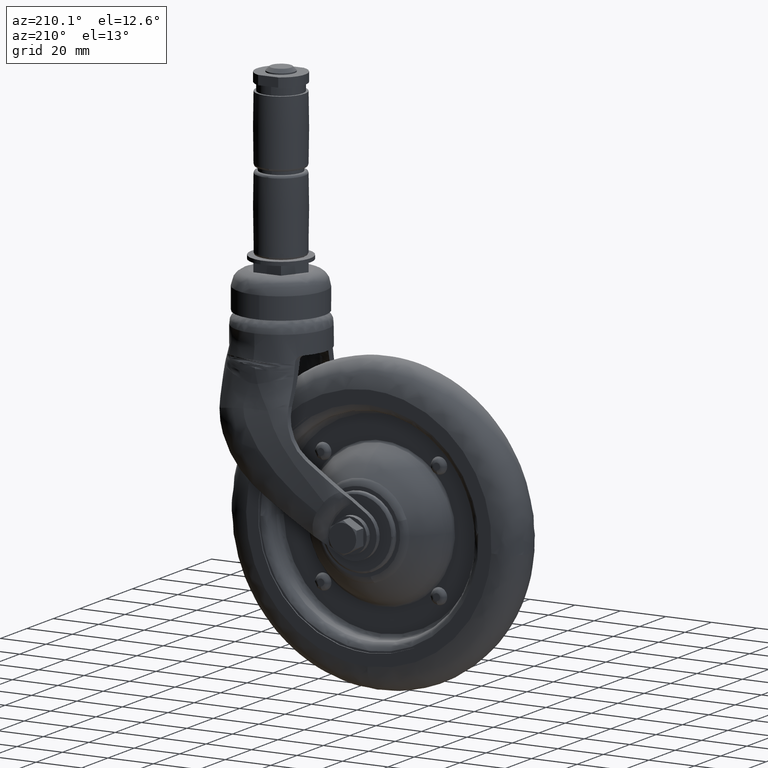
[diagram: clean part render]
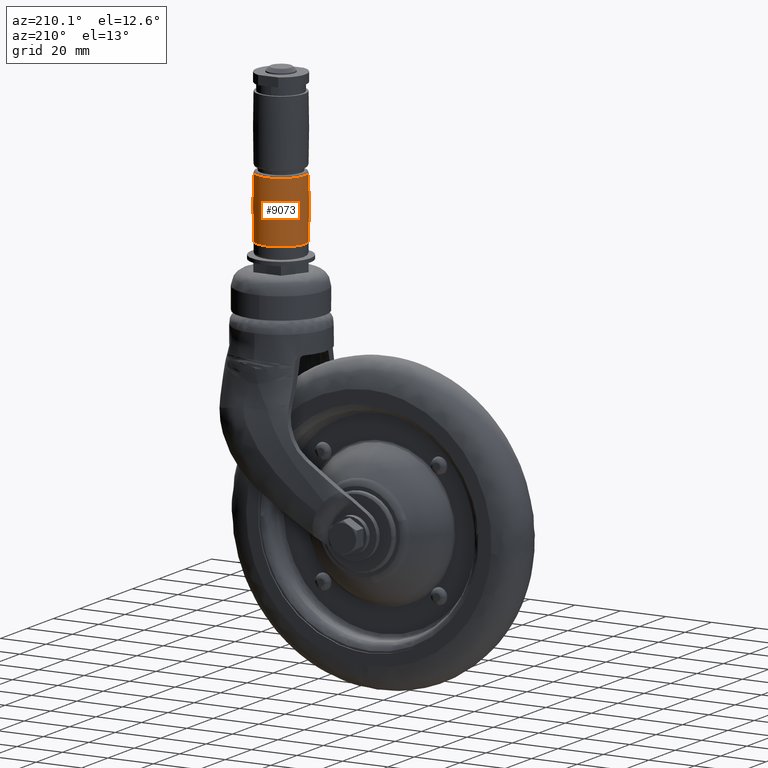
[diagram: same view with one face highlighted and labeled with its STEP entity id]
A machine part, auxiliary view. The second image highlights one B-rep face of the part: STEP entity #9073.
In plain terms, the highlighted face is a freeform B-spline surface patch.
Its self-contained STEP definition (entity closure, byte-faithful):
#7530=CARTESIAN_POINT('',(51.857936173965967,7.950991900244896,104.899996537919190));
#7531=VERTEX_POINT('',#7530);
#7537=CARTESIAN_POINT('',(55.499979311117123,0.0,104.899995811467700));
#7538=VERTEX_POINT('',#7537);
#7539=CARTESIAN_POINT('',(51.857936173965967,7.950991900244896,104.899996537919150));
#7540=CARTESIAN_POINT('',(55.499979311117109,4.809635764768170,104.899995811467680));
#7541=CARTESIAN_POINT('',(55.499979311117123,0.0,104.899995811467700));
#7549=(BOUNDED_CURVE()B_SPLINE_CURVE(2,(#7539,#7540,#7541),.UNSPECIFIED.,.F.,.U.)B_SPLINE_CURVE_WITH_KNOTS((3,3),(0.363877966792418,0.500000000000000),.UNSPECIFIED.)CURVE()GEOMETRIC_REPRESENTATION_ITEM()RATIONAL_B_SPLINE_CURVE((0.854712775574074,0.840523118169598,1.0))REPRESENTATION_ITEM(''));
#7550=EDGE_CURVE('',#7531,#7538,#7549,.T.);
#7552=CARTESIAN_POINT('',(46.212372041073053,-10.429751843484301,104.899999977481200));
#7553=VERTEX_POINT('',#7552);
#7567=CARTESIAN_POINT('',(38.608017779396718,-8.330193412636493,104.900000000000010));
#7568=VERTEX_POINT('',#7567);
#7569=CARTESIAN_POINT('',(46.212372041073053,-10.429751843484297,104.899999977481200));
#7570=CARTESIAN_POINT('',(45.608219989341102,-10.499979000000000,104.900000000000010));
#7571=CARTESIAN_POINT('',(45.0,-10.499979000000000,104.900000000000010));
#7572=CARTESIAN_POINT('',(41.435737410471589,-10.499979000000000,104.899999999999980));
#7573=CARTESIAN_POINT('',(38.608017779396725,-8.330193412636493,104.899999999999980));
#7581=(BOUNDED_CURVE()B_SPLINE_CURVE(2,(#7569,#7570,#7571,#7572,#7573),.UNSPECIFIED.,.F.,.U.)B_SPLINE_CURVE_WITH_KNOTS((3,2,3),(0.729999999991786,0.750000000000000,0.855220510393382),.UNSPECIFIED.)CURVE()GEOMETRIC_REPRESENTATION_ITEM()RATIONAL_B_SPLINE_CURVE((0.956886118174492,0.976568542485300,1.0,0.876726504102753,0.857220209455783))REPRESENTATION_ITEM(''));
#7582=EDGE_CURVE('',#7553,#7568,#7581,.T.);
#7678=CARTESIAN_POINT('',(34.500020999999997,0.0,104.900000000000010));
#7679=VERTEX_POINT('',#7678);
#7680=CARTESIAN_POINT('',(38.608017779396718,-8.330193412636493,104.899999999999990));
#7681=CARTESIAN_POINT('',(34.500020999999997,-5.178016617272037,104.899999999999990));
#7682=CARTESIAN_POINT('',(34.500020999999997,0.0,104.900000000000010));
#7690=(BOUNDED_CURVE()B_SPLINE_CURVE(2,(#7680,#7681,#7682),.UNSPECIFIED.,.F.,.U.)B_SPLINE_CURVE_WITH_KNOTS((3,3),(0.855220510393382,1.0),.UNSPECIFIED.)CURVE()GEOMETRIC_REPRESENTATION_ITEM()RATIONAL_B_SPLINE_CURVE((0.857220209455783,0.830380277083796,1.0))REPRESENTATION_ITEM(''));
#7691=EDGE_CURVE('',#7568,#7679,#7690,.T.);
#7693=CARTESIAN_POINT('',(34.500020999999997,0.0,104.900000000000010));
#7694=CARTESIAN_POINT('',(34.500020999999990,10.499979000000000,104.899999999999980));
#7695=CARTESIAN_POINT('',(45.000000155558560,10.499979000000000,104.899997905733800));
#7696=CARTESIAN_POINT('',(48.902677412690224,10.499979000000000,104.899997127328020));
#7697=CARTESIAN_POINT('',(51.857936173965967,7.950991900244896,104.899996537919140));
#7705=(BOUNDED_CURVE()B_SPLINE_CURVE(2,(#7693,#7694,#7695,#7696,#7697),.UNSPECIFIED.,.F.,.U.)B_SPLINE_CURVE_WITH_KNOTS((3,2,3),(0.0,0.250000000000000,0.363877966792418),.UNSPECIFIED.)CURVE()GEOMETRIC_REPRESENTATION_ITEM()RATIONAL_B_SPLINE_CURVE((1.0,0.707106781186548,1.0,0.866583663016949,0.854712775574073))REPRESENTATION_ITEM(''));
#7706=EDGE_CURVE('',#7679,#7531,#7705,.T.);
#8379=CARTESIAN_POINT('',(55.496663347494831,0.263865483914201,131.500006504213390));
#8380=VERTEX_POINT('',#8379);
#8394=CARTESIAN_POINT('',(44.736134512393647,10.496663494868340,131.500003196159610));
#8395=VERTEX_POINT('',#8394);
#8396=CARTESIAN_POINT('',(44.736134512393647,10.496663494868347,131.500003196159580));
#8397=CARTESIAN_POINT('',(44.868046340612452,10.499979998305426,131.500003232446010));
#8398=CARTESIAN_POINT('',(44.999999854303937,10.499979998305420,131.500003273011710));
#8399=CARTESIAN_POINT('',(55.239347912868013,10.499979998305420,131.500006420839580));
#8400=CARTESIAN_POINT('',(55.496663347494831,0.263865483914201,131.500006504213360));
#8408=(BOUNDED_CURVE()B_SPLINE_CURVE(2,(#8396,#8397,#8398,#8399,#8400),.UNSPECIFIED.,.F.,.U.)B_SPLINE_CURVE_WITH_KNOTS((3,2,3),(0.245579894116185,0.250000000000000,0.495579891871571),.UNSPECIFIED.)CURVE()GEOMETRIC_REPRESENTATION_ITEM()RATIONAL_B_SPLINE_CURVE((0.989826162985071,0.994821523840773,1.0,0.712285259975504,0.989826157911591))REPRESENTATION_ITEM(''));
#8409=EDGE_CURVE('',#8395,#8380,#8408,.T.);
#8472=CARTESIAN_POINT('',(34.500020001694580,0.0,131.500000045059210));
#8473=VERTEX_POINT('',#8472);
#8474=CARTESIAN_POINT('',(34.500020001694580,0.0,131.500000045059210));
#8475=CARTESIAN_POINT('',(34.500020001694587,10.239348332035142,131.500000045059210));
#8476=CARTESIAN_POINT('',(44.736134512393654,10.496663494868340,131.500003196159610));
#8484=(BOUNDED_CURVE()B_SPLINE_CURVE(2,(#8474,#8475,#8476),.UNSPECIFIED.,.F.,.U.)B_SPLINE_CURVE_WITH_KNOTS((3,3),(0.0,0.245579894116185),.UNSPECIFIED.)CURVE()GEOMETRIC_REPRESENTATION_ITEM()RATIONAL_B_SPLINE_CURVE((1.0,0.712285257345775,0.989826162985071))REPRESENTATION_ITEM(''));
#8485=EDGE_CURVE('',#8473,#8395,#8484,.T.);
#8487=CARTESIAN_POINT('',(46.212372098702389,-10.429752339299061,131.500000045048610));
#8488=VERTEX_POINT('',#8487);
#8489=CARTESIAN_POINT('',(46.212372098702396,-10.429752339299062,131.500000045048670));
#8490=CARTESIAN_POINT('',(45.608220047163762,-10.499979998305419,131.500000045059210));
#8491=CARTESIAN_POINT('',(45.0,-10.499979998305420,131.500000045059210));
#8492=CARTESIAN_POINT('',(34.500020001694573,-10.499979998305420,131.500000045059210));
#8493=CARTESIAN_POINT('',(34.500020001694580,0.0,131.500000045059210));
#8501=(BOUNDED_CURVE()B_SPLINE_CURVE(2,(#8489,#8490,#8491,#8492,#8493),.UNSPECIFIED.,.F.,.U.)B_SPLINE_CURVE_WITH_KNOTS((3,2,3),(0.729999999991946,0.750000000000000,1.0),.UNSPECIFIED.)CURVE()GEOMETRIC_REPRESENTATION_ITEM()RATIONAL_B_SPLINE_CURVE((0.956886118174808,0.976568542485488,1.0,0.707106781186548,1.0))REPRESENTATION_ITEM(''));
#8502=EDGE_CURVE('',#8488,#8473,#8501,.T.);
#8504=CARTESIAN_POINT('',(55.499979706913287,0.0,131.500006500964190));
#8505=VERTEX_POINT('',#8504);
#8519=CARTESIAN_POINT('',(55.496663347494824,0.263865483914201,131.500006504213360));
#8520=CARTESIAN_POINT('',(55.499979706913294,0.131953582879772,131.500006500964190));
#8521=CARTESIAN_POINT('',(55.499979706913287,0.0,131.500006500964190));
#8529=(BOUNDED_CURVE()B_SPLINE_CURVE(2,(#8519,#8520,#8521),.UNSPECIFIED.,.F.,.U.)B_SPLINE_CURVE_WITH_KNOTS((3,3),(0.495579891871571,0.500000000000000),.UNSPECIFIED.)CURVE()GEOMETRIC_REPRESENTATION_ITEM()RATIONAL_B_SPLINE_CURVE((0.989826157911592,0.994821521211044,1.0))REPRESENTATION_ITEM(''));
#8530=EDGE_CURVE('',#8380,#8505,#8529,.T.);
#9002=CARTESIAN_POINT('',(46.205109644416794,-10.367277383007853,103.572883013618930));
#9003=CARTESIAN_POINT('',(46.288964148324879,-11.088658135255056,118.199995195229660));
#9004=CARTESIAN_POINT('',(46.205109699370993,-10.367277855766160,132.827107400470990));
#9005=CARTESIAN_POINT('',(45.604576634805298,-10.437084343402253,103.572883013618920));
#9006=CARTESIAN_POINT('',(45.646644569470752,-11.163322436274289,118.199995195229720));
#9007=CARTESIAN_POINT('',(45.604576662374605,-10.437084819343836,132.827107400470990));
#9008=CARTESIAN_POINT('',(45.0,-10.437084343402262,103.572883013618980));
#9009=CARTESIAN_POINT('',(45.000000000000007,-11.163322436274296,118.199995195229720));
#9010=CARTESIAN_POINT('',(45.0,-10.437084819343834,132.827107400471050));
#9011=CARTESIAN_POINT('',(34.562915656597745,-10.437084343402248,103.572883013618930));
#9012=CARTESIAN_POINT('',(33.836677563725708,-11.163322436274278,118.199995195229680));
#9013=CARTESIAN_POINT('',(34.562915180656162,-10.437084819343815,132.827107400471020));
#9014=CARTESIAN_POINT('',(34.562915656597745,0.0,103.572883013618980));
#9015=CARTESIAN_POINT('',(33.836677563725708,0.0,118.199995195229720));
#9016=CARTESIAN_POINT('',(34.562915180656177,0.0,132.827107400471050));
#9017=CARTESIAN_POINT('',(34.562915656597745,10.437084343402256,103.572883013618930));
#9018=CARTESIAN_POINT('',(33.836677563725722,11.163322436274290,118.199995195229680));
#9019=CARTESIAN_POINT('',(34.562915180656191,10.437084819343834,132.827107400471020));
#9020=CARTESIAN_POINT('',(45.0,10.437084343402262,103.572883013618980));
#9021=CARTESIAN_POINT('',(45.000000000000007,11.163322436274296,118.199995195229720));
#9022=CARTESIAN_POINT('',(45.0,10.437084819343834,132.827107400471050));
#9023=CARTESIAN_POINT('',(55.437084343402255,10.437084343402248,103.572883013618930));
#9024=CARTESIAN_POINT('',(56.163322436274278,11.163322436274278,118.199995195229680));
#9025=CARTESIAN_POINT('',(55.437084819343831,10.437084819343815,132.827107400471020));
#9026=CARTESIAN_POINT('',(55.437084343402262,0.0,103.572883013618980));
#9027=CARTESIAN_POINT('',(56.163322436274299,0.0,118.199995195229720));
#9028=CARTESIAN_POINT('',(55.437084819343838,0.0,132.827107400471050));
#9036=(BOUNDED_SURFACE()B_SPLINE_SURFACE(2,2,((#9002,#9005,#9008,#9011,#9014,#9017,#9020,#9023,#9026),(#9003,#9006,#9009,#9012,#9015,#9018,#9021,#9024,#9027),(#9004,#9007,#9010,#9013,#9016,#9019,#9022,#9025,#9028)),.UNSPECIFIED.,.F.,.F.,.U.)B_SPLINE_SURFACE_WITH_KNOTS((3,3),(3,2,2,2,3),(0.0,29.272231097010462),(0.0,1.431519121956397,19.325511879389140,37.219504636821888,55.113497394254630),.UNSPECIFIED.)GEOMETRIC_REPRESENTATION_ITEM()RATIONAL_B_SPLINE_SURFACE(((0.939946502977386,0.959280488767430,0.982297137602881,0.694588967139133,0.982297137602881,0.694588967139133,0.982297137602881,0.694588967139133,0.982297137602881),(0.938790093017830,0.958100292333159,0.981088623937934,0.693734418931492,0.981088623937934,0.693734418931492,0.981088623937934,0.693734418931492,0.981088623937934),(0.939946502218598,0.959280487993033,0.982297136809904,0.694588966578413,0.982297136809904,0.694588966578413,0.982297136809904,0.694588966578413,0.982297136809904)))REPRESENTATION_ITEM('')SURFACE());
#9037=ORIENTED_EDGE('',*,*,#8502,.T.);
#9038=ORIENTED_EDGE('',*,*,#8485,.T.);
#9039=ORIENTED_EDGE('',*,*,#8409,.T.);
#9040=ORIENTED_EDGE('',*,*,#8530,.T.);
#9041=CARTESIAN_POINT('',(55.499979311117116,0.0,104.899995811467690));
#9042=CARTESIAN_POINT('',(56.100285671764098,0.0,118.200001147283670));
#9043=CARTESIAN_POINT('',(55.499979706913479,0.0,131.500006500964220));
#9051=(BOUNDED_CURVE()B_SPLINE_CURVE(2,(#9041,#9042,#9043),.UNSPECIFIED.,.F.,.U.)B_SPLINE_CURVE_WITH_KNOTS((3,3),(0.417411882192966,0.582588132040959),.UNSPECIFIED.)CURVE()GEOMETRIC_REPRESENTATION_ITEM()RATIONAL_B_SPLINE_CURVE((0.982192357168110,0.981193403890132,0.982192357340278))REPRESENTATION_ITEM(''));
#9052=EDGE_CURVE('',#7538,#8505,#9051,.T.);
#9053=ORIENTED_EDGE('',*,*,#9052,.F.);
#9054=ORIENTED_EDGE('',*,*,#7550,.F.);
#9055=ORIENTED_EDGE('',*,*,#7706,.F.);
#9056=ORIENTED_EDGE('',*,*,#7691,.F.);
#9057=ORIENTED_EDGE('',*,*,#7582,.F.);
#9058=CARTESIAN_POINT('',(46.212372041073060,-10.429751843484297,104.899999977481190));
#9059=CARTESIAN_POINT('',(46.281685902665714,-11.026042713005891,118.200000000000260));
#9060=CARTESIAN_POINT('',(46.212372098702389,-10.429752339299061,131.500000045048610));
#9068=(BOUNDED_CURVE()B_SPLINE_CURVE(2,(#9058,#9059,#9060),.UNSPECIFIED.,.F.,.U.)B_SPLINE_CURVE_WITH_KNOTS((3,3),(0.417411908088777,0.582588091911226),.UNSPECIFIED.)CURVE()GEOMETRIC_REPRESENTATION_ITEM()RATIONAL_B_SPLINE_CURVE((0.939846231667406,0.938890347824803,0.939846231667406))REPRESENTATION_ITEM(''));
#9069=EDGE_CURVE('',#7553,#8488,#9068,.T.);
#9070=ORIENTED_EDGE('',*,*,#9069,.T.);
#9071=EDGE_LOOP('',(#9037,#9038,#9039,#9040,#9053,#9054,#9055,#9056,#9057,#9070));
#9072=FACE_OUTER_BOUND('',#9071,.T.);
#9073=ADVANCED_FACE('',(#9072),#9036,.T.);